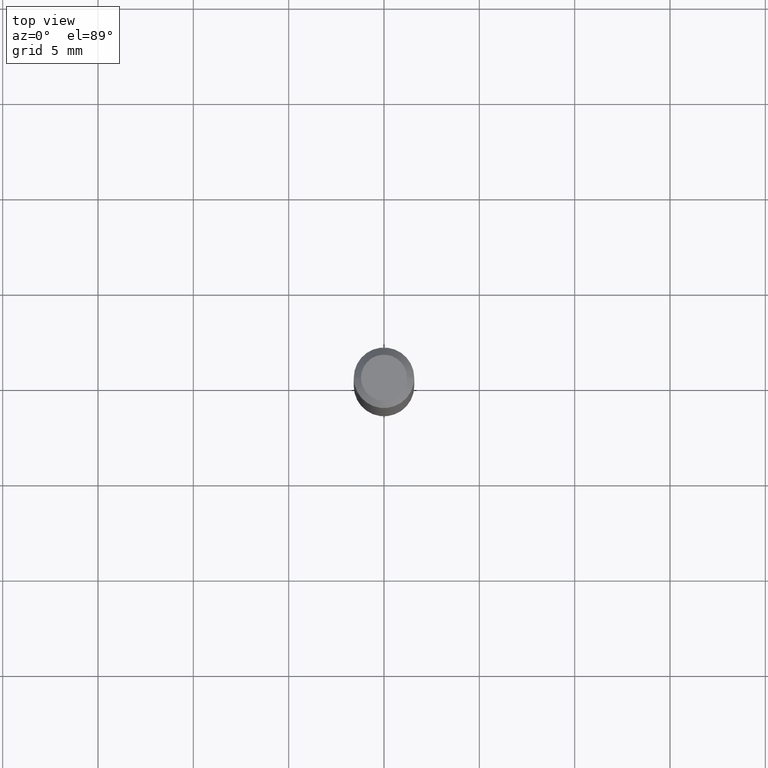
[diagram: clean part render]
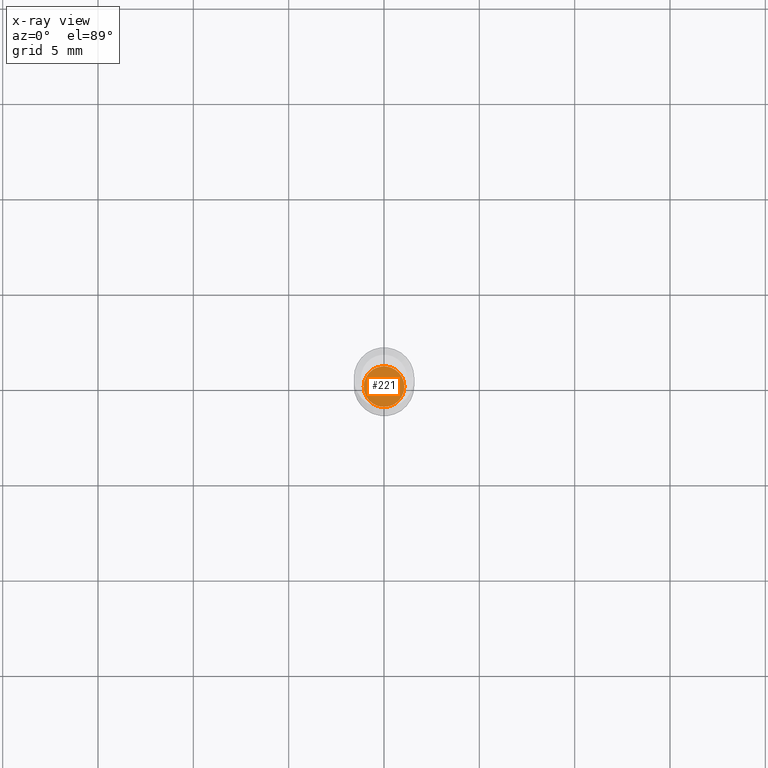
[diagram: x-ray — body ghosted, one internal face saturated and labeled with its STEP entity id]
A machine part, top view, then the same camera in x-ray: the body is ghosted and one INTERNAL B-rep face — a face not visible from any outside direction — is saturated and labeled: STEP entity #221.
In plain terms, the highlighted planar face has unit normal (-0, 0, 1).
Its self-contained STEP definition (entity closure, byte-faithful):
#3 = CARTESIAN_POINT ( 'NONE',  ( 2.628878966649022066E-29, -3.753342439256381768E-15, -1.075000000000000178 ) ) ;
#4 = CARTESIAN_POINT ( 'NONE',  ( 2.628878966649022066E-29, -3.753342439256381768E-15, -1.075000000000000178 ) ) ;
#57 = EDGE_LOOP ( 'NONE', ( #340, #82 ) ) ;
#63 = FACE_OUTER_BOUND ( 'NONE', #57, .T. ) ;
#67 = DIRECTION ( 'NONE',  ( 1.000000000000000000, -6.982962677686263555E-15, 0.000000000000000000 ) ) ;
#78 = AXIS2_PLACEMENT_3D ( 'NONE', #412, #302, #295 ) ;
#82 = ORIENTED_EDGE ( 'NONE', *, *, #118, .F. ) ;
#118 = EDGE_CURVE ( 'NONE', #229, #299, #431, .T. ) ;
#132 = DIRECTION ( 'NONE',  ( -2.445468806185136597E-29, 3.491481338843145583E-15, 1.000000000000000000 ) ) ;
#134 = AXIS2_PLACEMENT_3D ( 'NONE', #4, #436, #442 ) ;
#140 = CARTESIAN_POINT ( 'NONE',  ( -0.04199999999999999567, -3.452265263063028618E-15, -1.075000000000000178 ) ) ;
#221 = ADVANCED_FACE ( 'NONE', ( #63 ), #409, .F. ) ;
#229 = VERTEX_POINT ( 'NONE', #140 ) ;
#281 = CARTESIAN_POINT ( 'NONE',  ( 0.04199999999999999567, -4.046626871719205411E-15, -1.075000000000000178 ) ) ;
#295 = DIRECTION ( 'NONE',  ( 1.000000000000000000, -6.982962677686263555E-15, 0.000000000000000000 ) ) ;
#299 = VERTEX_POINT ( 'NONE', #281 ) ;
#302 = DIRECTION ( 'NONE',  ( -2.445468806185136597E-29, 3.491481338843145583E-15, 1.000000000000000000 ) ) ;
#331 = CIRCLE ( 'NONE', #78, 0.04199999999999999567 ) ;
#340 = ORIENTED_EDGE ( 'NONE', *, *, #384, .F. ) ;
#384 = EDGE_CURVE ( 'NONE', #299, #229, #331, .T. ) ;
#395 = AXIS2_PLACEMENT_3D ( 'NONE', #3, #132, #67 ) ;
#409 = PLANE ( 'NONE',  #134 ) ;
#412 = CARTESIAN_POINT ( 'NONE',  ( 2.628878966649022066E-29, -3.753342439256381768E-15, -1.075000000000000178 ) ) ;
#431 = CIRCLE ( 'NONE', #395, 0.04199999999999999567 ) ;
#436 = DIRECTION ( 'NONE',  ( -2.438088387897960049E-29, 3.491481338843145188E-15, 1.000000000000000000 ) ) ;
#442 = DIRECTION ( 'NONE',  ( 1.000000000000000000, -6.982962677686265922E-15, 4.876176775795935793E-29 ) ) ;